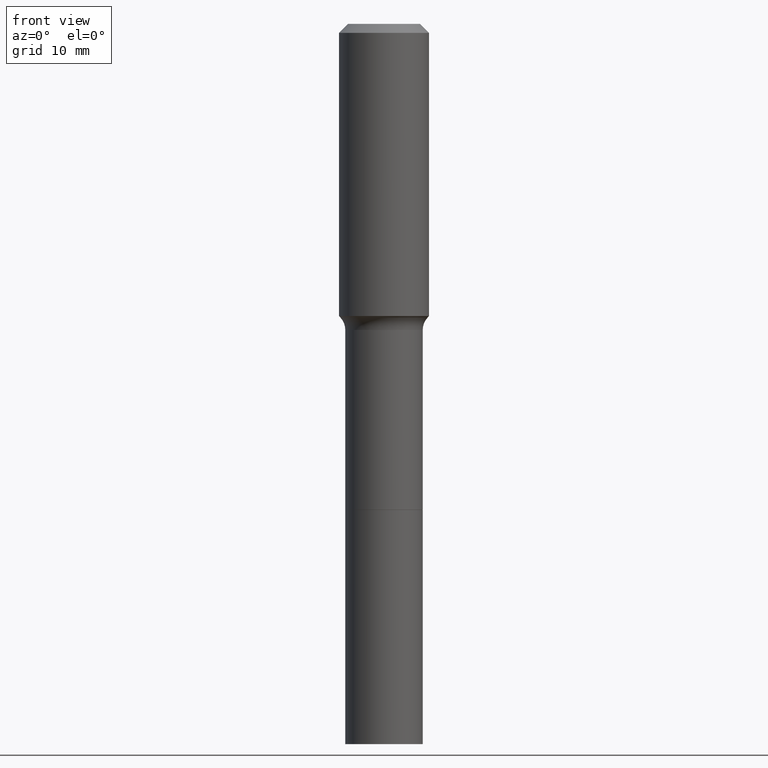
[diagram: clean part render]
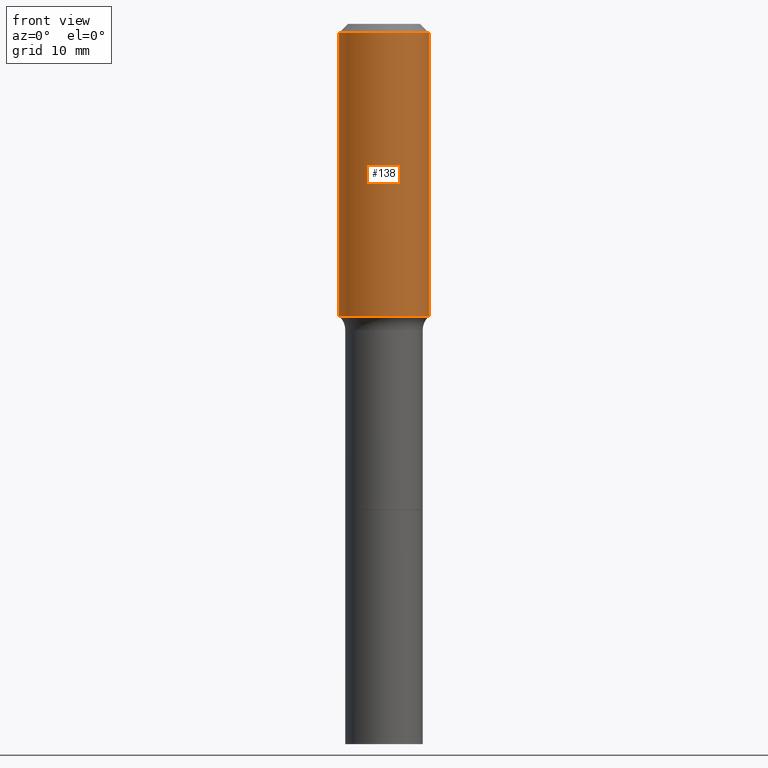
[diagram: same view with one face highlighted and labeled with its STEP entity id]
A machine part, front view. The second image highlights one B-rep face of the part: STEP entity #138.
In plain terms, the highlighted cylindrical surface (partial cylindrical patch) has radius 5 mm, axis along (-0, 0, 1).
Its self-contained STEP definition (entity closure, byte-faithful):
#30 = VERTEX_POINT ( 'NONE', #235 ) ;
#31 = DIRECTION ( 'NONE',  ( -2.445468806185136597E-29, 3.491481338843145583E-15, 1.000000000000000000 ) ) ;
#57 = AXIS2_PLACEMENT_3D ( 'NONE', #384, #31, #184 ) ;
#58 = CARTESIAN_POINT ( 'NONE',  ( 0.1968500000000000527, -1.512055823412797583E-15, -0.03937000000000030059 ) ) ;
#80 = ORIENTED_EDGE ( 'NONE', *, *, #211, .F. ) ;
#91 = EDGE_CURVE ( 'NONE', #338, #219, #390, .T. ) ;
#102 = AXIS2_PLACEMENT_3D ( 'NONE', #407, #136, #134 ) ;
#106 = ORIENTED_EDGE ( 'NONE', *, *, #91, .F. ) ;
#132 = DIRECTION ( 'NONE',  ( -2.445468806185136597E-29, 3.491481338843145583E-15, 1.000000000000000000 ) ) ;
#134 = DIRECTION ( 'NONE',  ( 1.000000000000000000, -6.982962677686266711E-15, 4.876176775795935793E-29 ) ) ;
#136 = DIRECTION ( 'NONE',  ( -2.445468806185136597E-29, 3.491481338843145583E-15, 1.000000000000000000 ) ) ;
#138 = ADVANCED_FACE ( 'NONE', ( #204 ), #336, .T. ) ;
#142 = VECTOR ( 'NONE', #172, 39.37007874015748143 ) ;
#172 = DIRECTION ( 'NONE',  ( -2.445468806185136877E-29, 3.491481338843145188E-15, 1.000000000000000000 ) ) ;
#178 = EDGE_CURVE ( 'NONE', #30, #219, #331, .T. ) ;
#184 = DIRECTION ( 'NONE',  ( 1.000000000000000000, -6.982962677686266711E-15, 0.000000000000000000 ) ) ;
#204 = FACE_OUTER_BOUND ( 'NONE', #434, .T. ) ;
#206 = CARTESIAN_POINT ( 'NONE',  ( 9.627810689950955906E-31, -1.374596203102556794E-16, -0.03937000000000030059 ) ) ;
#211 = EDGE_CURVE ( 'NONE', #403, #338, #487, .T. ) ;
#214 = VECTOR ( 'NONE', #251, 39.37007874015748143 ) ;
#219 = VERTEX_POINT ( 'NONE', #58 ) ;
#235 = CARTESIAN_POINT ( 'NONE',  ( 0.1968500000000001915, -5.835115157694468144E-15, -1.277543403989624737 ) ) ;
#247 = CARTESIAN_POINT ( 'NONE',  ( -0.1968500000000001082, 1.398703375343757985E-15, -9.682923725166787881E-30 ) ) ;
#251 = DIRECTION ( 'NONE',  ( -2.445468806185136877E-29, 3.491481338843145188E-15, 1.000000000000000000 ) ) ;
#311 = CARTESIAN_POINT ( 'NONE',  ( -0.1968500000000000527, -9.002859121073322847E-16, -0.03937000000000030059 ) ) ;
#331 = LINE ( 'NONE', #372, #214 ) ;
#336 = CYLINDRICAL_SURFACE ( 'NONE', #102, 0.1968500000000001082 ) ;
#338 = VERTEX_POINT ( 'NONE', #311 ) ;
#346 = AXIS2_PLACEMENT_3D ( 'NONE', #206, #132, #368 ) ;
#368 = DIRECTION ( 'NONE',  ( 1.000000000000000000, -6.982962677686266711E-15, 0.000000000000000000 ) ) ;
#372 = CARTESIAN_POINT ( 'NONE',  ( 0.1968500000000001082, -1.374596203102542397E-15, 9.598753983154305062E-30 ) ) ;
#378 = EDGE_CURVE ( 'NONE', #403, #30, #501, .T. ) ;
#384 = CARTESIAN_POINT ( 'NONE',  ( 3.124192543004203228E-29, -4.460518954591924958E-15, -1.277543403989624737 ) ) ;
#390 = CIRCLE ( 'NONE', #346, 0.1968500000000000527 ) ;
#401 = CARTESIAN_POINT ( 'NONE',  ( -0.1968500000000001915, -3.061815579248166776E-15, -1.277543403989624737 ) ) ;
#403 = VERTEX_POINT ( 'NONE', #401 ) ;
#407 = CARTESIAN_POINT ( 'NONE',  ( 0.000000000000000000, 0.000000000000000000, 0.000000000000000000 ) ) ;
#434 = EDGE_LOOP ( 'NONE', ( #80, #461, #502, #106 ) ) ;
#461 = ORIENTED_EDGE ( 'NONE', *, *, #378, .T. ) ;
#487 = LINE ( 'NONE', #247, #142 ) ;
#501 = CIRCLE ( 'NONE', #57, 0.1968500000000001915 ) ;
#502 = ORIENTED_EDGE ( 'NONE', *, *, #178, .T. ) ;